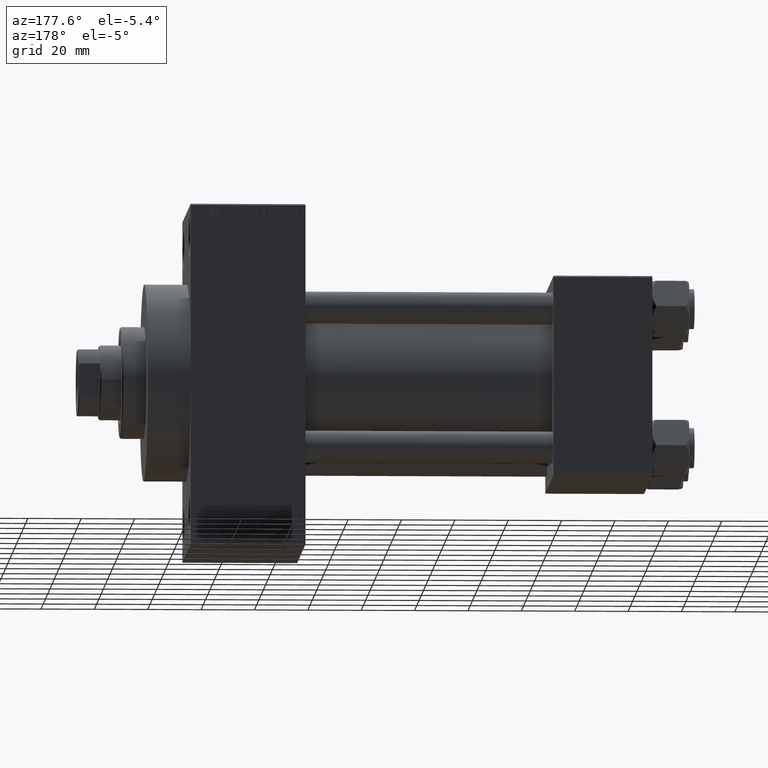
[diagram: clean part render]
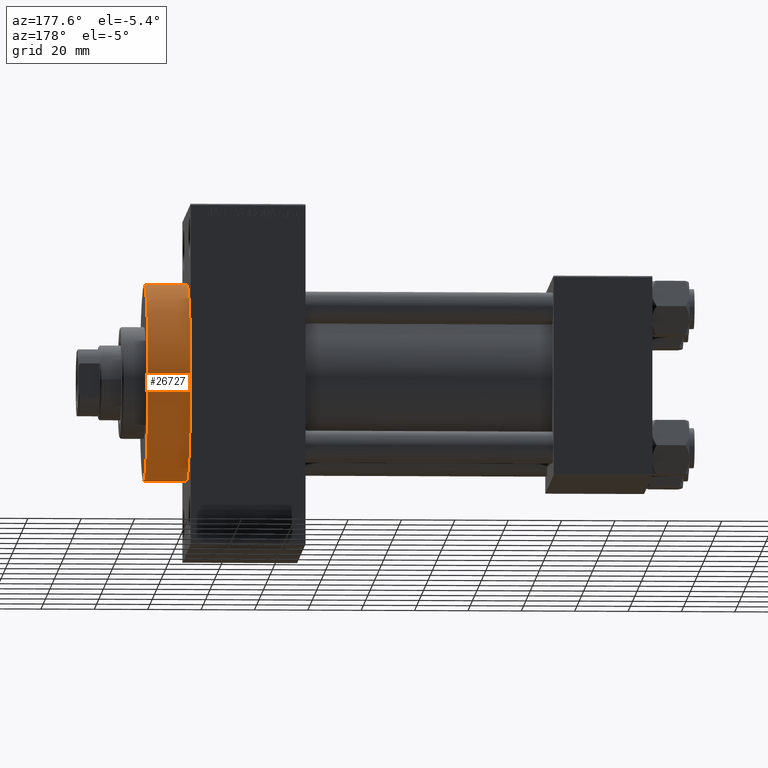
[diagram: same view with one face highlighted and labeled with its STEP entity id]
A machine part, auxiliary view. The second image highlights one B-rep face of the part: STEP entity #26727.
In plain terms, the highlighted cylindrical surface (partial cylindrical patch) has radius 37 mm, axis along (-1, -0, -0).
Its self-contained STEP definition (entity closure, byte-faithful):
#2580 = EDGE_CURVE ( 'NONE', #28205, #11129, #46151, .T. ) ;
#3056 = CARTESIAN_POINT ( 'NONE',  ( 173.0000000000000000, 0.000000000000000000, 37.00000000000000000 ) ) ;
#4214 = DIRECTION ( 'NONE',  ( 0.000000000000000000, 0.000000000000000000, 1.000000000000000000 ) ) ;
#4264 = ORIENTED_EDGE ( 'NONE', *, *, #34050, .T. ) ;
#4858 = ORIENTED_EDGE ( 'NONE', *, *, #7855, .F. ) ;
#5658 = VECTOR ( 'NONE', #36675, 1000.000000000000000 ) ;
#7098 = DIRECTION ( 'NONE',  ( 0.000000000000000000, 0.000000000000000000, -1.000000000000000000 ) ) ;
#7855 = EDGE_CURVE ( 'NONE', #11129, #17758, #18537, .T. ) ;
#8163 = CARTESIAN_POINT ( 'NONE',  ( 189.0000000000000000, 4.531193156845206793E-15, -37.00000000000000000 ) ) ;
#11129 = VERTEX_POINT ( 'NONE', #40576 ) ;
#11836 = FACE_OUTER_BOUND ( 'NONE', #40448, .T. ) ;
#12822 = ORIENTED_EDGE ( 'NONE', *, *, #15033, .T. ) ;
#13413 = DIRECTION ( 'NONE',  ( 0.000000000000000000, 0.000000000000000000, -1.000000000000000000 ) ) ;
#15033 = EDGE_CURVE ( 'NONE', #28205, #18975, #18907, .T. ) ;
#17686 = ORIENTED_EDGE ( 'NONE', *, *, #2580, .F. ) ;
#17758 = VERTEX_POINT ( 'NONE', #3056 ) ;
#18537 = LINE ( 'NONE', #21894, #5658 ) ;
#18907 = LINE ( 'NONE', #8163, #43124 ) ;
#18975 = VERTEX_POINT ( 'NONE', #42468 ) ;
#21280 = DIRECTION ( 'NONE',  ( 1.000000000000000000, 0.000000000000000000, 0.000000000000000000 ) ) ;
#21608 = AXIS2_PLACEMENT_3D ( 'NONE', #39333, #21675, #7098 ) ;
#21675 = DIRECTION ( 'NONE',  ( 1.000000000000000000, 0.000000000000000000, 0.000000000000000000 ) ) ;
#21894 = CARTESIAN_POINT ( 'NONE',  ( 189.0000000000000000, 0.000000000000000000, 37.00000000000000000 ) ) ;
#22341 = CYLINDRICAL_SURFACE ( 'NONE', #43387, 37.00000000000000000 ) ;
#26727 = ADVANCED_FACE ( 'NONE', ( #11836 ), #22341, .T. ) ;
#28205 = VERTEX_POINT ( 'NONE', #32474 ) ;
#29755 = CARTESIAN_POINT ( 'NONE',  ( 189.0000000000000000, 0.000000000000000000, 0.000000000000000000 ) ) ;
#32474 = CARTESIAN_POINT ( 'NONE',  ( 189.0000000000000000, 4.531193156845206793E-15, -37.00000000000000000 ) ) ;
#32495 = CARTESIAN_POINT ( 'NONE',  ( 189.0000000000000000, 0.000000000000000000, 0.000000000000000000 ) ) ;
#34050 = EDGE_CURVE ( 'NONE', #18975, #17758, #35333, .T. ) ;
#34184 = DIRECTION ( 'NONE',  ( -1.000000000000000000, -0.000000000000000000, -0.000000000000000000 ) ) ;
#35333 = CIRCLE ( 'NONE', #21608, 37.00000000000000000 ) ;
#36675 = DIRECTION ( 'NONE',  ( -1.000000000000000000, -0.000000000000000000, -0.000000000000000000 ) ) ;
#36901 = DIRECTION ( 'NONE',  ( -1.000000000000000000, -0.000000000000000000, -0.000000000000000000 ) ) ;
#39333 = CARTESIAN_POINT ( 'NONE',  ( 173.0000000000000000, 0.000000000000000000, 0.000000000000000000 ) ) ;
#40448 = EDGE_LOOP ( 'NONE', ( #17686, #12822, #4264, #4858 ) ) ;
#40576 = CARTESIAN_POINT ( 'NONE',  ( 189.0000000000000000, 0.000000000000000000, 37.00000000000000000 ) ) ;
#42468 = CARTESIAN_POINT ( 'NONE',  ( 173.0000000000000000, 4.531193156845206793E-15, -37.00000000000000000 ) ) ;
#43088 = AXIS2_PLACEMENT_3D ( 'NONE', #32495, #21280, #13413 ) ;
#43124 = VECTOR ( 'NONE', #34184, 1000.000000000000000 ) ;
#43387 = AXIS2_PLACEMENT_3D ( 'NONE', #29755, #36901, #4214 ) ;
#46151 = CIRCLE ( 'NONE', #43088, 37.00000000000000000 ) ;